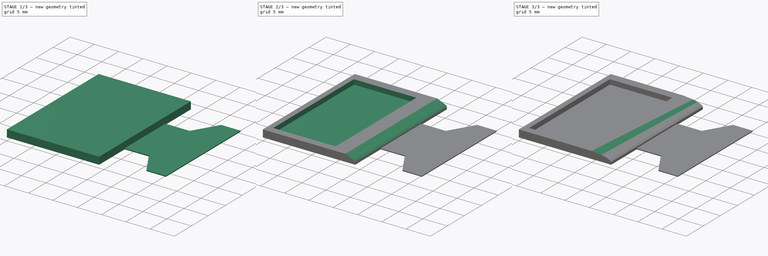
[diagram: build sequence overview — one tinted view per stage of 3, left to right]
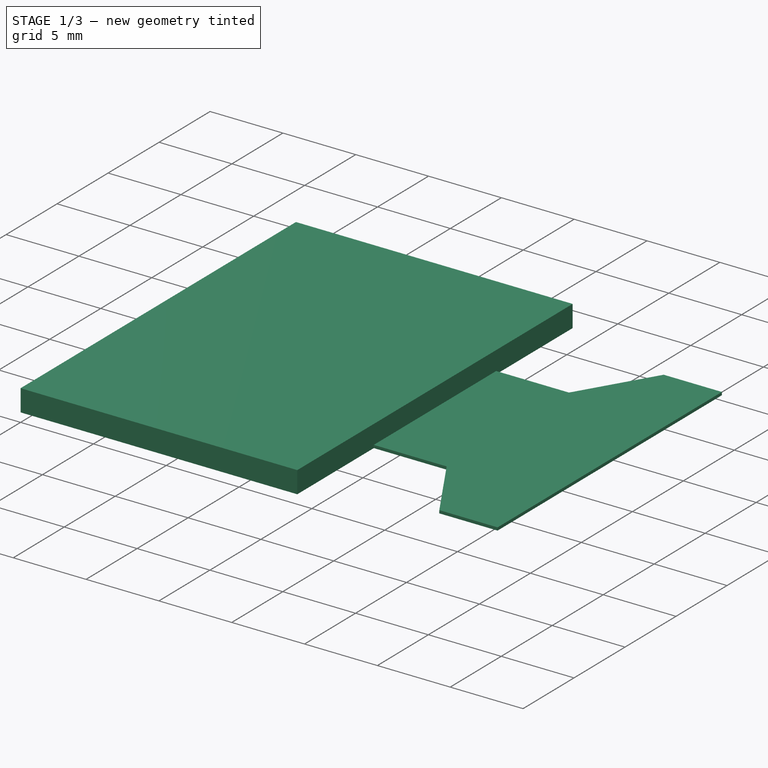
[diagram: stage 1 of 3 — iso view after this stage's code; geometry added in this stage tinted green]
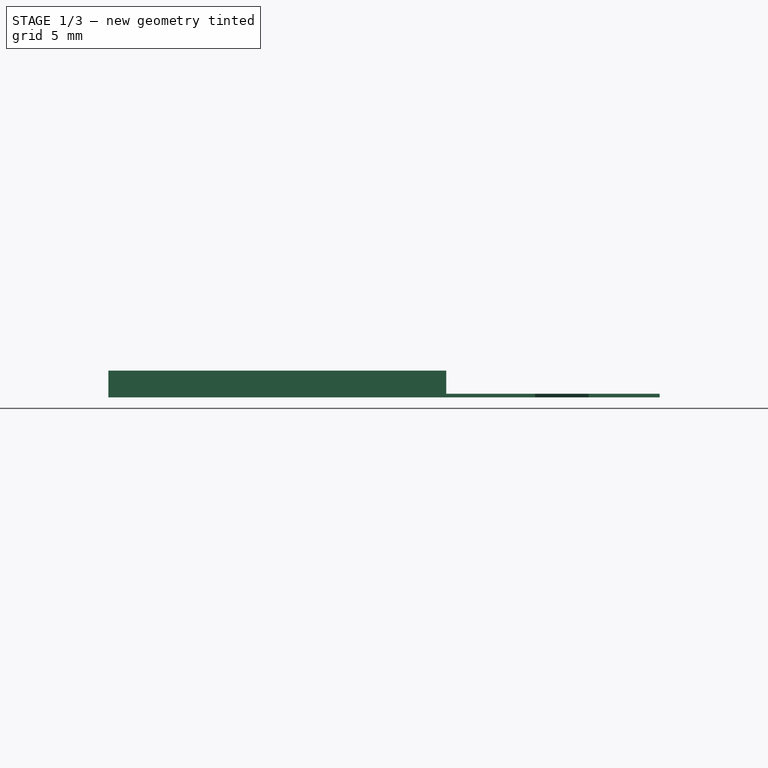
[diagram: stage 1 of 3 — front view after this stage's code; geometry added in this stage tinted green]
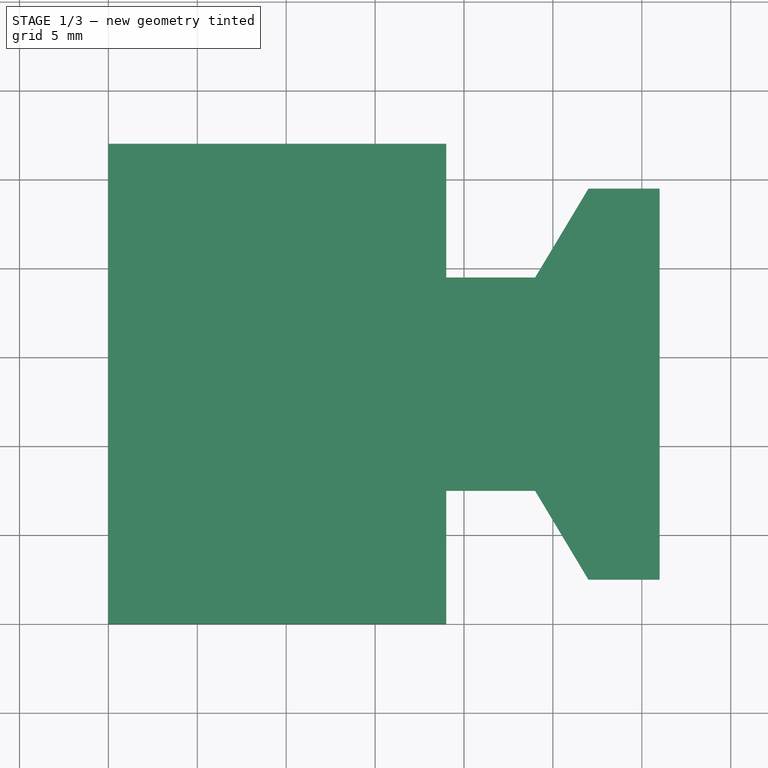
[diagram: stage 1 of 3 — top view after this stage's code; geometry added in this stage tinted green]
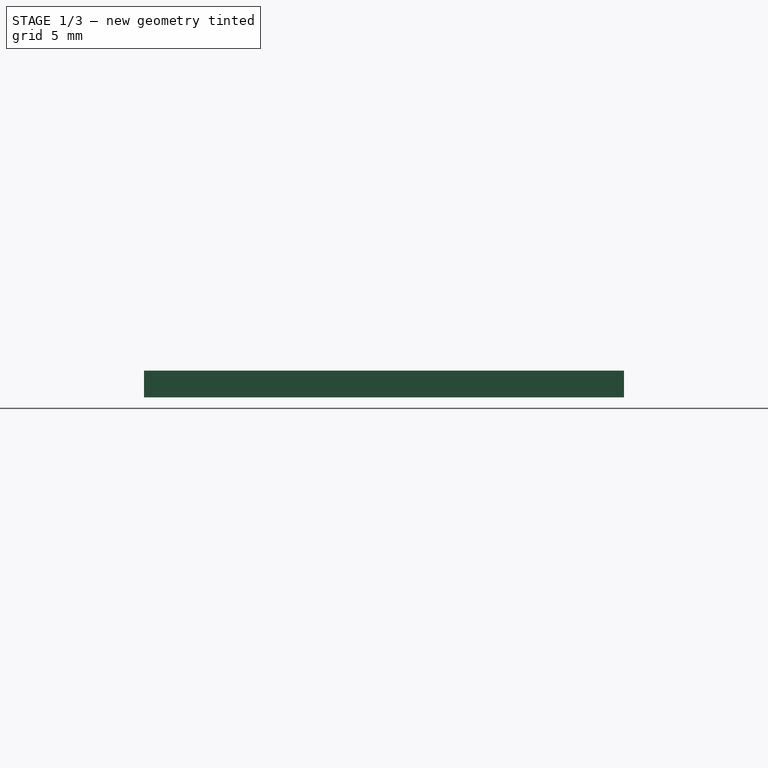
[diagram: stage 1 of 3 — right view after this stage's code; geometry added in this stage tinted green]
FCSTD DOCUMENT  (FreeCAD 0.18R16131 (Git))
Label: Downloads
License: All rights reserved
LicenseURL: http://en.wikipedia.org/wiki/All_rights_reserved
objects: Sketcher::SketchObject×4, PartDesign::Chamfer×4, PartDesign::Pad×2, PartDesign::Pocket×1, PartDesign::Body×1
note: 15 computed .brp shape members not serialized (recipe doc carries the construction recipe); baked Part::Feature solids carry a one-line shape summary decoded from their .brp

FEATURE [Sketcher::SketchObject] Sketch
  MapMode = 5
  Support = -> [XY_Plane]
  sketch-geometry (4):
    g0: LineSegment StartX=0 StartY=27 StartZ=0 EndX=19 EndY=27 EndZ=0
    g1: LineSegment StartX=19 StartY=27 StartZ=0 EndX=19 EndY=0 EndZ=0
    g2: LineSegment StartX=19 StartY=0 StartZ=0 EndX=0 EndY=0 EndZ=0
    g3: LineSegment StartX=0 StartY=0 StartZ=0 EndX=0 EndY=27 EndZ=0
  constraints (11):
    c: Coincident(g0,g1)
    c: Coincident(g1,g2)
    c: Coincident(g2,g3)
    c: Coincident(g3,g0)
    c: Horizontal(g0)
    c: Horizontal(g2)
    c: Vertical(g1)
    c: Vertical(g3)
    c: DistanceX(g0,g0) = 19
    c: DistanceY(g3,g3) = 27
    c: Coincident(g2,g-1)
FEATURE [PartDesign::Pad] Pad
  Length = 1.5
  Length2 = 100
  Profile = -> Sketch
  Type = 0
FEATURE [Sketcher::SketchObject] Sketch001
  MapMode = 5
  Placement = pos=(0,0,0) rot=(1,0,0;3.14159rad)
  Support = -> [Pad]
  sketch-geometry (8):
    g0: LineSegment StartX=18 StartY=-7.5 StartZ=0 EndX=24 EndY=-7.5 EndZ=0
    g1: LineSegment StartX=24 StartY=-19.5 StartZ=0 EndX=18 EndY=-19.5 EndZ=0
    g2: LineSegment StartX=18 StartY=-19.5 StartZ=0 EndX=18 EndY=-7.5 EndZ=0
    g3: LineSegment StartX=27 StartY=-2.5 StartZ=0 EndX=31 EndY=-2.5 EndZ=0
    g4: LineSegment StartX=31 StartY=-2.5 StartZ=0 EndX=31 EndY=-24.5 EndZ=0
    g5: LineSegment StartX=31 StartY=-24.5 StartZ=0 EndX=27 EndY=-24.5 EndZ=0
    g6: LineSegment StartX=24 StartY=-7.5 StartZ=0 EndX=27 EndY=-2.5 EndZ=0
    g7: LineSegment StartX=24 StartY=-19.5 StartZ=0 EndX=27 EndY=-24.5 EndZ=0
  constraints (24):
    c: Coincident(g1,g2)
    c: Coincident(g2,g0)
    c: Horizontal(g0)
    c: Horizontal(g1)
    c: Vertical(g2)
    c: DistanceY(g0,g-1) = 7.5
    c: DistanceY(g2,g2) = 12
    c: DistanceX(g-1,g0) = 18
    c: DistanceX(g0,g0) = 6
    c: Coincident(g3,g4)
    c: Coincident(g4,g5)
    c: Horizontal(g3)
    c: Horizontal(g5)
    c: Vertical(g4)
    c: Coincident(g1,g7)
    c: Coincident(g5,g7)
    c: Coincident(g3,g6)
    c: Coincident(g0,g6)
    c: DistanceX(g1,g4) = 7
    c: Equal(g0,g1)
    c: DistanceY(g4,g3) = 22
    c: DistanceY(g3,g-1) = 2.5
    c: DistanceX(g5,g5) = 4
    c: Equal(g3,g5)
FEATURE [PartDesign::Pad] Pad001
  BaseFeature = -> Pad
  Length = 0.2
  Length2 = 100
  Profile = -> Sketch001
  Reversed = true
  Type = 0
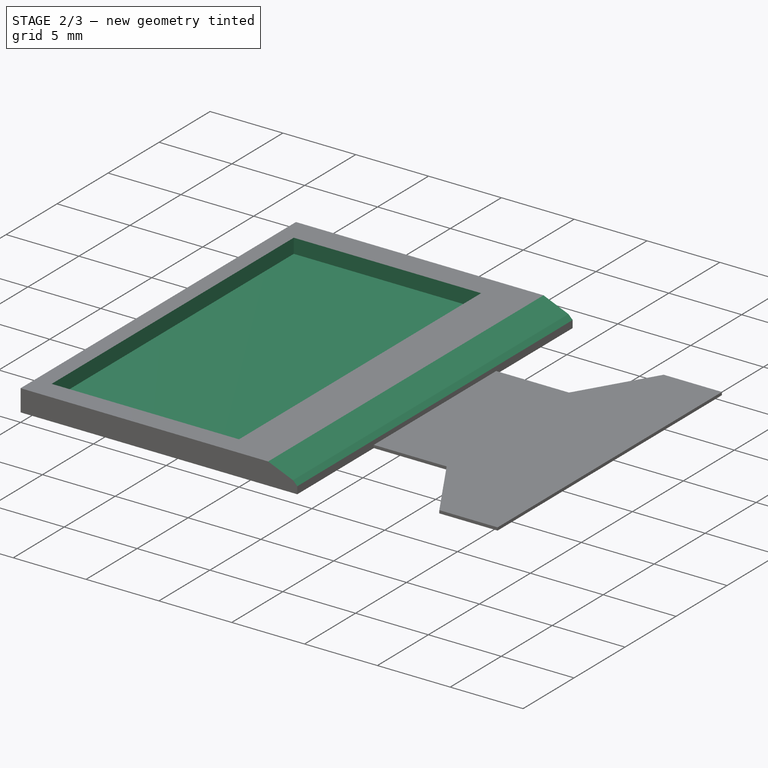
[diagram: stage 2 of 3 — iso view after this stage's code; geometry added in this stage tinted green]
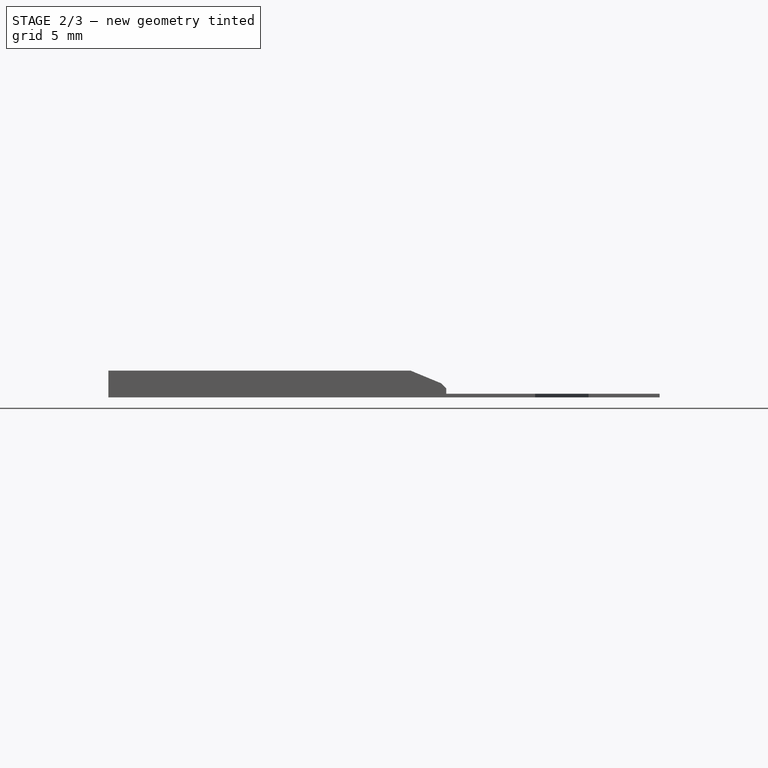
[diagram: stage 2 of 3 — front view after this stage's code; geometry added in this stage tinted green]
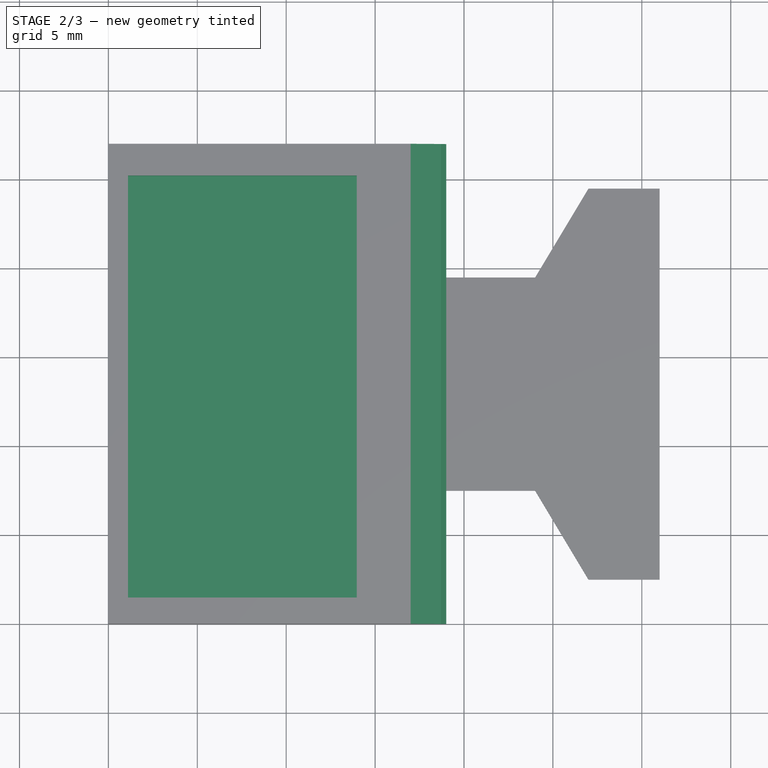
[diagram: stage 2 of 3 — top view after this stage's code; geometry added in this stage tinted green]
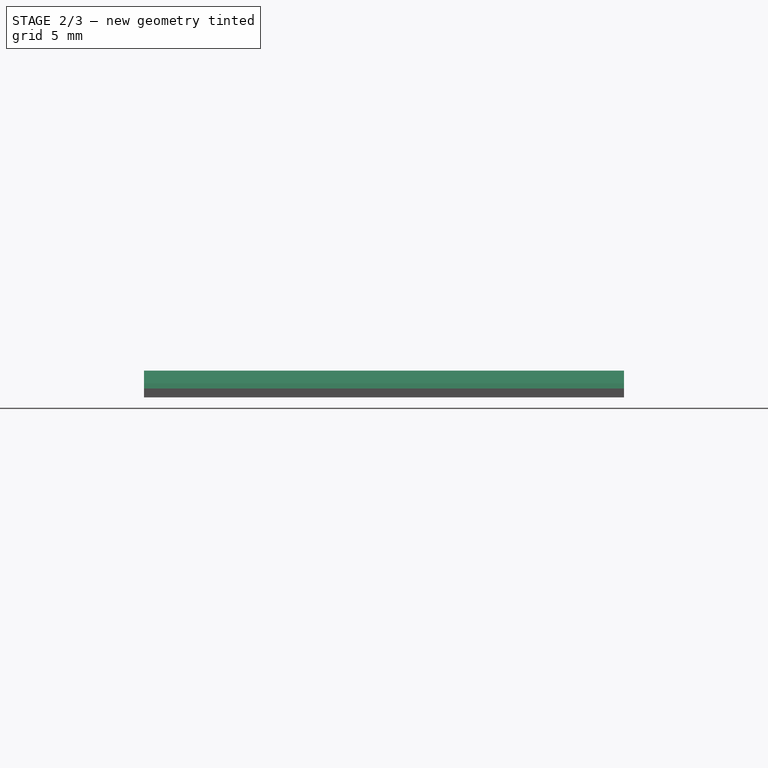
[diagram: stage 2 of 3 — right view after this stage's code; geometry added in this stage tinted green]
FEATURE [Sketcher::SketchObject] Sketch002
  MapMode = 5
  Placement = pos=(0,0,1.5) rot=(0,0,1;0rad)
  Support = -> [Pad001]
FEATURE [Sketcher::SketchObject] Sketch003
  MapMode = 5
  Placement = pos=(0,0,1.5) rot=(0,0,1;0rad)
  Support = -> [Pad001]
  sketch-geometry (4):
    g0: LineSegment StartX=1.1 StartY=25.218 StartZ=0 EndX=13.964 EndY=25.218 EndZ=0
    g1: LineSegment StartX=13.964 StartY=25.218 StartZ=0 EndX=13.964 EndY=1.478 EndZ=0
    g2: LineSegment StartX=13.964 StartY=1.478 StartZ=0 EndX=1.1 EndY=1.478 EndZ=0
    g3: LineSegment StartX=1.1 StartY=1.478 StartZ=0 EndX=1.1 EndY=25.218 EndZ=0
  constraints (12):
    c: Coincident(g0,g1)
    c: Coincident(g1,g2)
    c: Coincident(g2,g3)
    c: Coincident(g3,g0)
    c: Horizontal(g0)
    c: Horizontal(g2)
    c: Vertical(g1)
    c: Vertical(g3)
    c: DistanceY(g3,g3) = 23.74
    c: DistanceY(g-1,g2) = 1.478
    c: DistanceX(g0,g0) = 12.864
    c: DistanceX(g-1,g2) = 1.1
FEATURE [PartDesign::Pocket] Pocket
  BaseFeature = -> Pad001
  Length = 1
  Length2 = 100
  Profile = -> Sketch003
  Type = 0
FEATURE [PartDesign::Chamfer] Chamfer
  Base = -> Pocket [Edge14]
  BaseFeature = -> Pocket
  Size = 1
FEATURE [PartDesign::Chamfer] Chamfer001
  Base = -> Chamfer [Edge13]
  BaseFeature = -> Chamfer
  Size = 1
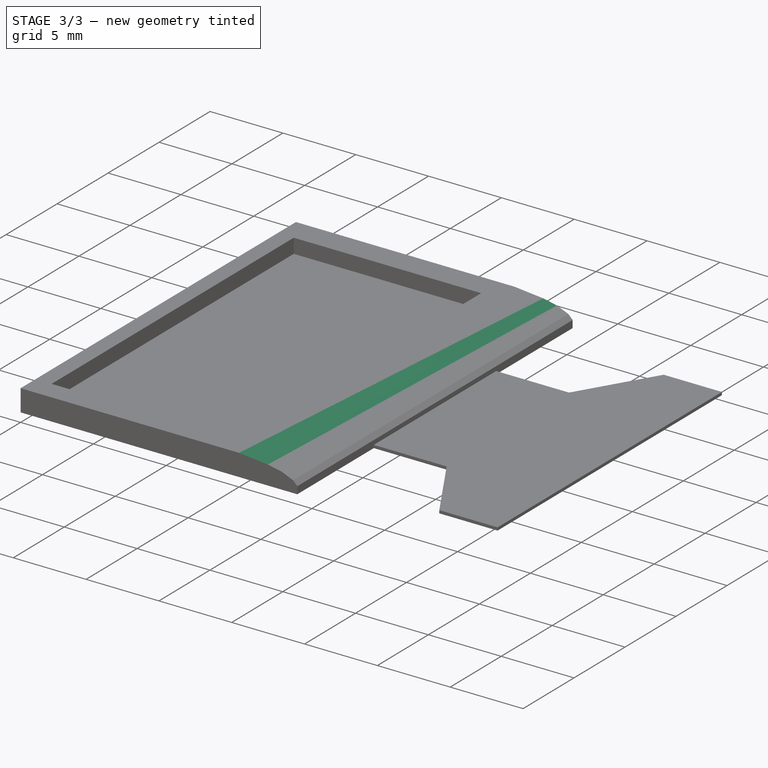
[diagram: stage 3 of 3 — iso view after this stage's code; geometry added in this stage tinted green]
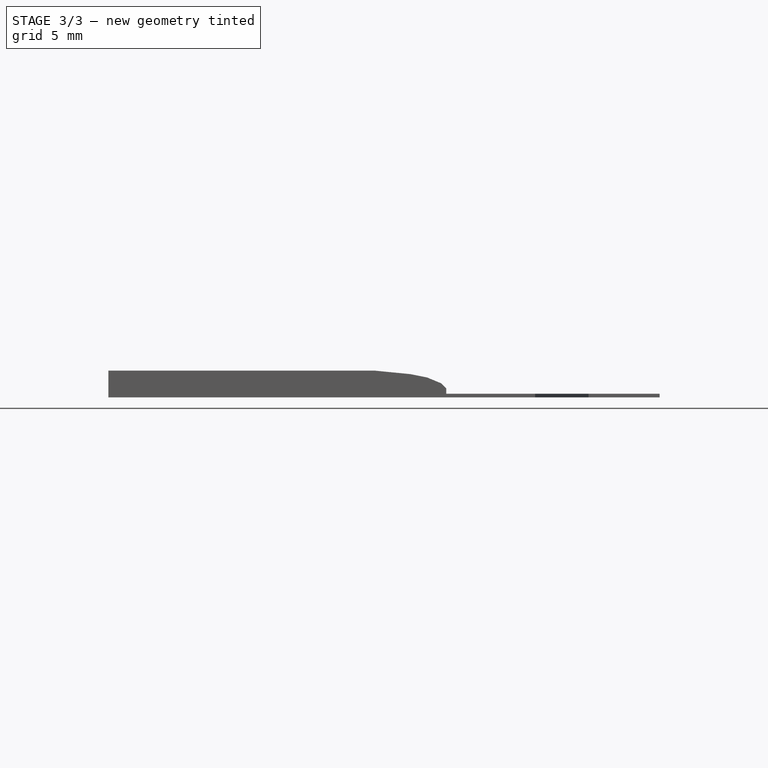
[diagram: stage 3 of 3 — front view after this stage's code; geometry added in this stage tinted green]
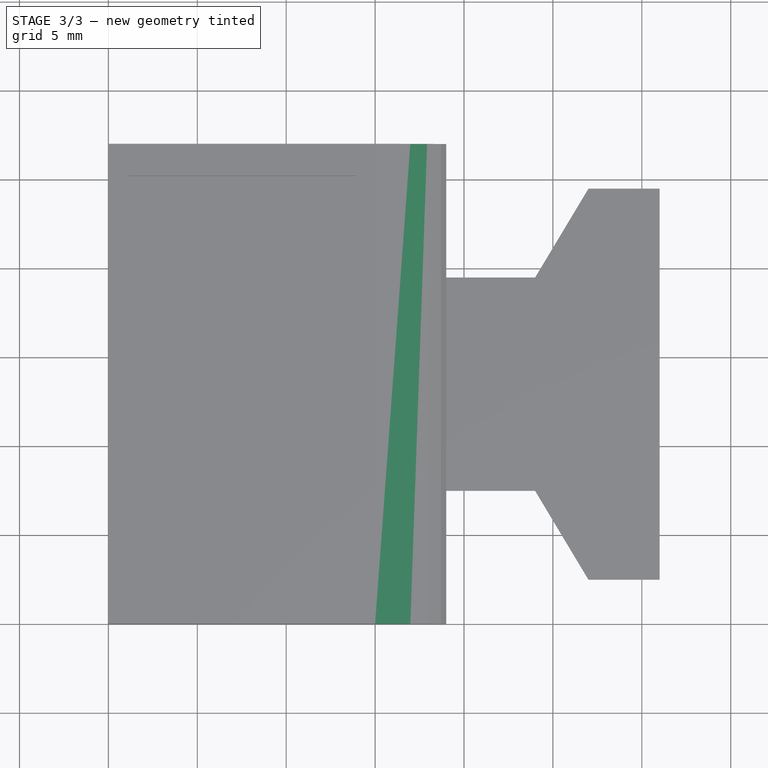
[diagram: stage 3 of 3 — top view after this stage's code; geometry added in this stage tinted green]
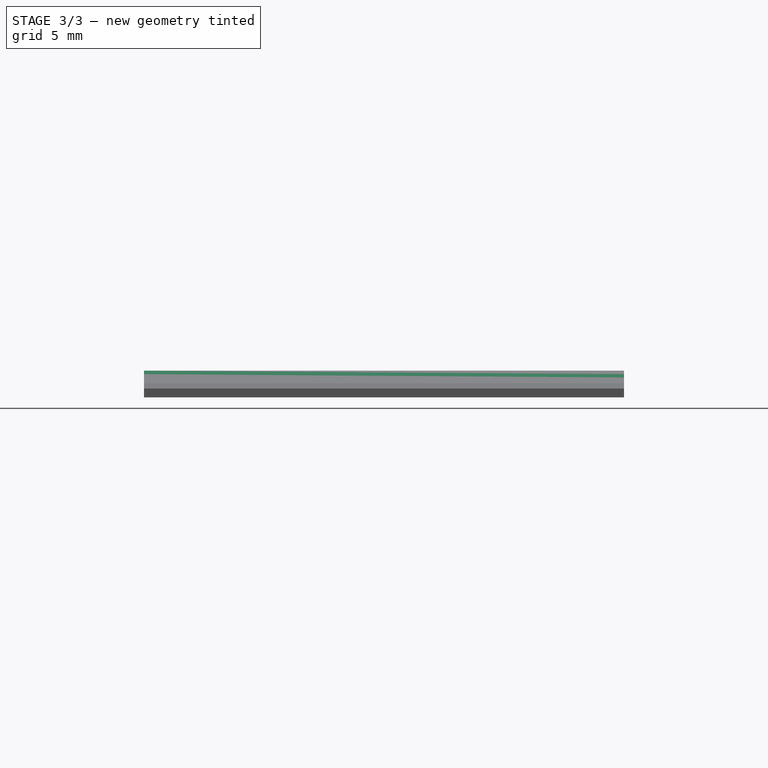
[diagram: stage 3 of 3 — right view after this stage's code; geometry added in this stage tinted green]
FEATURE [PartDesign::Chamfer] Chamfer002
  Base = -> Chamfer001 [Edge10]
  BaseFeature = -> Chamfer001
  Size = 1
FEATURE [PartDesign::Chamfer] Chamfer003
  Base = -> Chamfer002 [Edge11]
  BaseFeature = -> Chamfer002
  Size = 1
FEATURE [PartDesign::Body] Body
  Group = -> [Sketch,Pad,Sketch001,Pad001,Sketch002,Sketch003,Pocket,Chamfer,Chamfer001,Chamfer002,Chamfer003]
  Origin = -> Origin
  Tip = -> Chamfer003
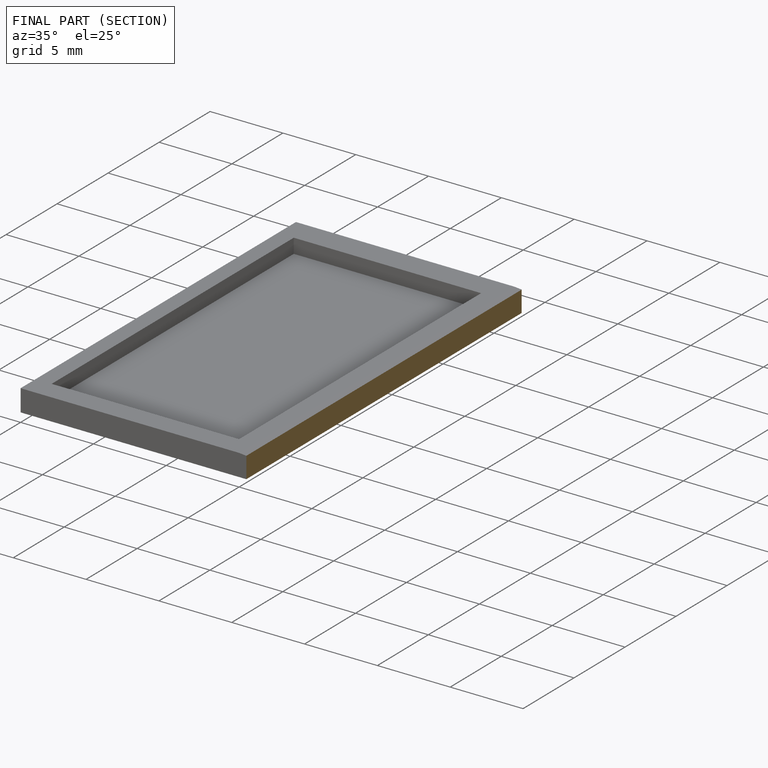
[diagram: finished part — half-section view (interior)]
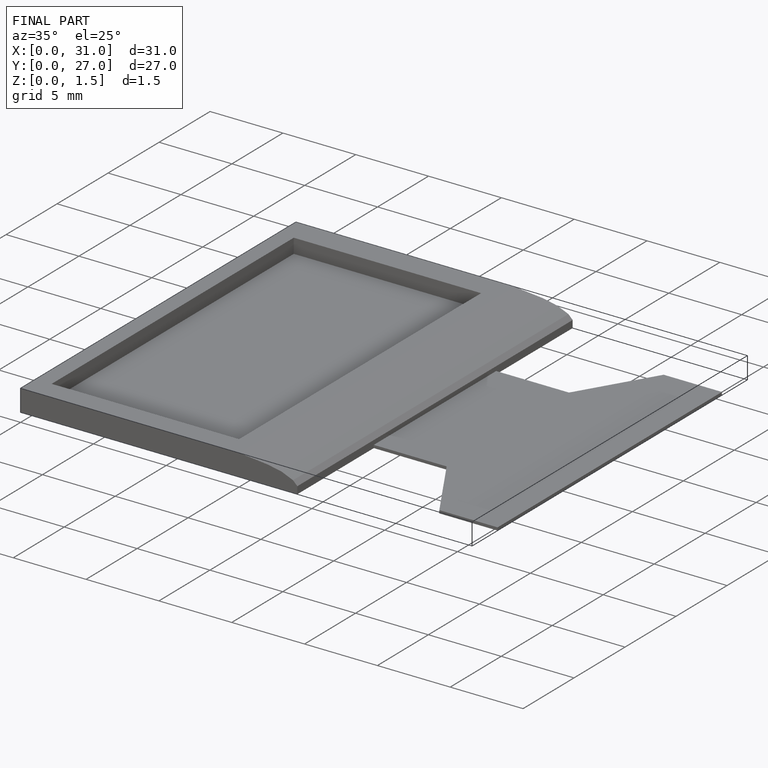
[diagram: finished part — iso view with bounding-box wireframe]
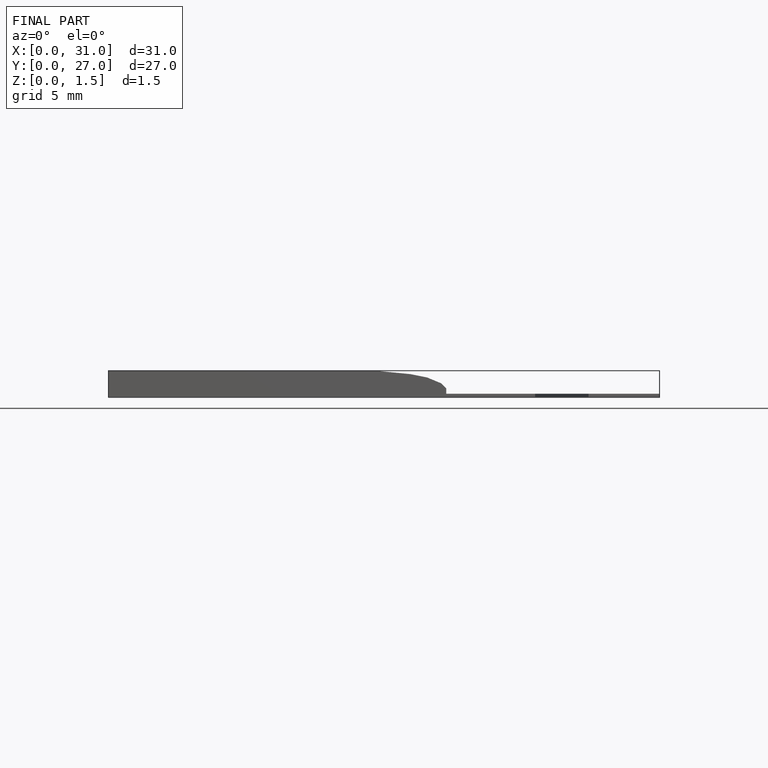
[diagram: finished part — front view with bounding-box wireframe]
